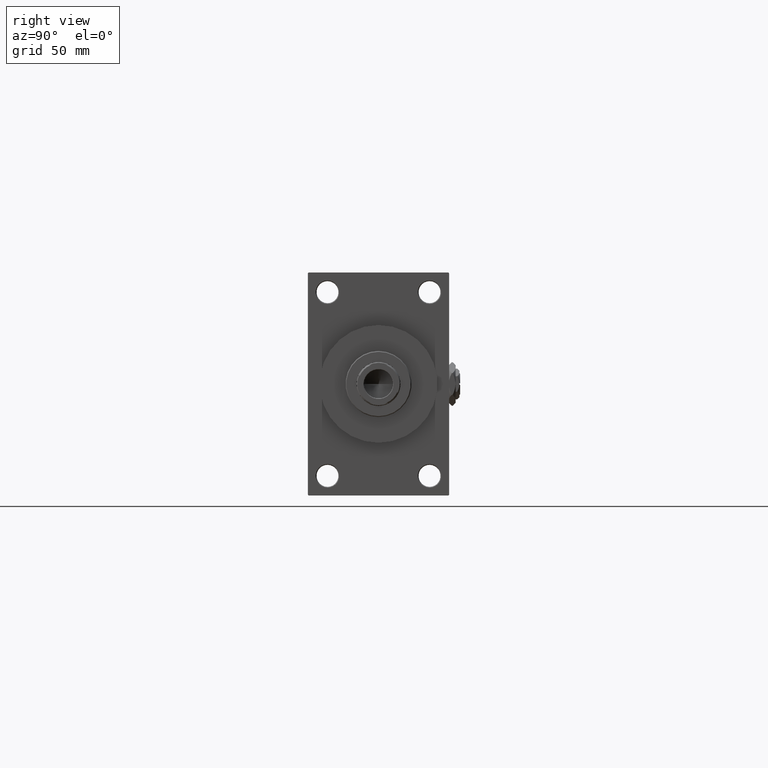
[diagram: clean part render]
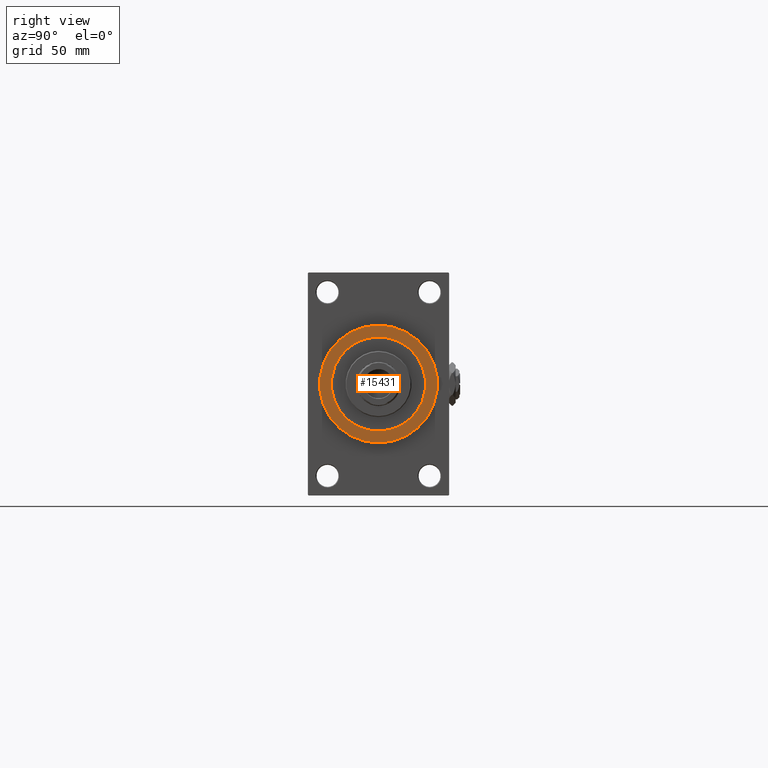
[diagram: same view with one face highlighted and labeled with its STEP entity id]
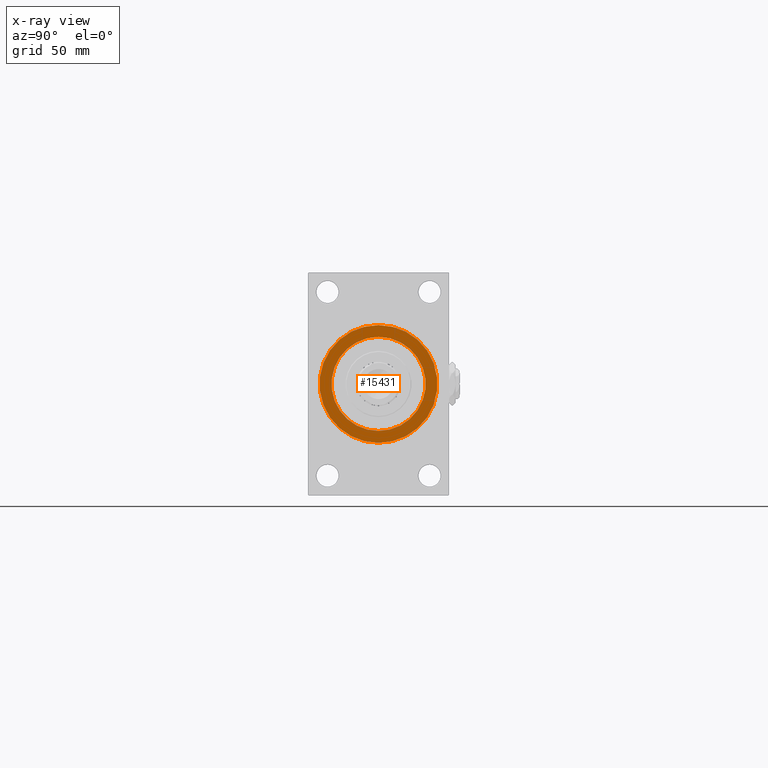
[diagram: x-ray of the same camera — body ghosted, the highlighted face saturated]
A machine part, right view. The second image highlights one B-rep face of the part: STEP entity #15431.
The next image is the same camera in x-ray: the body ghosted, the highlighted face saturated — about 0% of this face is hidden behind the body in this view.
In plain terms, the highlighted planar face has unit normal (1, 0, 0).
Its self-contained STEP definition (entity closure, byte-faithful):
#973 = PLANE ( 'NONE',  #46825 ) ;
#2323 = CARTESIAN_POINT ( 'NONE',  ( 385.9999999999999432, 0.000000000000000000, 0.000000000000000000 ) ) ;
#3842 = VERTEX_POINT ( 'NONE', #43515 ) ;
#4801 = DIRECTION ( 'NONE',  ( 0.000000000000000000, 0.000000000000000000, -1.000000000000000000 ) ) ;
#5044 = DIRECTION ( 'NONE',  ( 1.000000000000000000, 0.000000000000000000, 0.000000000000000000 ) ) ;
#5191 = DIRECTION ( 'NONE',  ( 0.000000000000000000, 0.000000000000000000, -1.000000000000000000 ) ) ;
#5443 = CIRCLE ( 'NONE', #27748, 37.50000000000000711 ) ;
#5760 = CIRCLE ( 'NONE', #17013, 30.00000000000000000 ) ;
#6057 = DIRECTION ( 'NONE',  ( 1.000000000000000000, 0.000000000000000000, 0.000000000000000000 ) ) ;
#7396 = CARTESIAN_POINT ( 'NONE',  ( 385.9999999999999432, 3.673940397442059178E-15, 30.00000000000000000 ) ) ;
#12169 = CARTESIAN_POINT ( 'NONE',  ( 385.9999999999999432, 0.000000000000000000, 0.000000000000000000 ) ) ;
#12331 = VERTEX_POINT ( 'NONE', #7396 ) ;
#12925 = DIRECTION ( 'NONE',  ( 1.000000000000000000, 0.000000000000000000, 0.000000000000000000 ) ) ;
#13915 = ORIENTED_EDGE ( 'NONE', *, *, #18518, .T. ) ;
#13969 = ORIENTED_EDGE ( 'NONE', *, *, #19358, .T. ) ;
#15431 = ADVANCED_FACE ( 'NONE', ( #46829, #20901 ), #973, .T. ) ;
#16271 = EDGE_LOOP ( 'NONE', ( #33964, #31075 ) ) ;
#17013 = AXIS2_PLACEMENT_3D ( 'NONE', #2323, #6057, #40452 ) ;
#18179 = AXIS2_PLACEMENT_3D ( 'NONE', #46412, #5044, #4801 ) ;
#18518 = EDGE_CURVE ( 'NONE', #3842, #48243, #5443, .T. ) ;
#18688 = AXIS2_PLACEMENT_3D ( 'NONE', #12169, #20402, #5191 ) ;
#19358 = EDGE_CURVE ( 'NONE', #48243, #3842, #39665, .T. ) ;
#20402 = DIRECTION ( 'NONE',  ( 1.000000000000000000, 0.000000000000000000, 0.000000000000000000 ) ) ;
#20901 = FACE_OUTER_BOUND ( 'NONE', #31494, .T. ) ;
#24312 = DIRECTION ( 'NONE',  ( 1.000000000000000000, 0.000000000000000000, 0.000000000000000000 ) ) ;
#26331 = EDGE_CURVE ( 'NONE', #43039, #12331, #5760, .T. ) ;
#27628 = DIRECTION ( 'NONE',  ( 0.000000000000000000, 0.000000000000000000, -1.000000000000000000 ) ) ;
#27748 = AXIS2_PLACEMENT_3D ( 'NONE', #27816, #24312, #36022 ) ;
#27816 = CARTESIAN_POINT ( 'NONE',  ( 385.9999999999999432, 0.000000000000000000, 0.000000000000000000 ) ) ;
#29455 = EDGE_CURVE ( 'NONE', #12331, #43039, #31401, .T. ) ;
#31075 = ORIENTED_EDGE ( 'NONE', *, *, #29455, .F. ) ;
#31401 = CIRCLE ( 'NONE', #18688, 30.00000000000000000 ) ;
#31494 = EDGE_LOOP ( 'NONE', ( #13915, #13969 ) ) ;
#33964 = ORIENTED_EDGE ( 'NONE', *, *, #26331, .F. ) ;
#36022 = DIRECTION ( 'NONE',  ( 0.000000000000000000, 0.000000000000000000, -1.000000000000000000 ) ) ;
#39665 = CIRCLE ( 'NONE', #18179, 37.50000000000000711 ) ;
#40452 = DIRECTION ( 'NONE',  ( 0.000000000000000000, 0.000000000000000000, -1.000000000000000000 ) ) ;
#43039 = VERTEX_POINT ( 'NONE', #44086 ) ;
#43304 = CARTESIAN_POINT ( 'NONE',  ( 385.9999999999999432, 4.592425496802575156E-15, -37.50000000000000711 ) ) ;
#43515 = CARTESIAN_POINT ( 'NONE',  ( 385.9999999999999432, 0.000000000000000000, 37.50000000000000711 ) ) ;
#44086 = CARTESIAN_POINT ( 'NONE',  ( 385.9999999999999432, 0.000000000000000000, -30.00000000000000000 ) ) ;
#46412 = CARTESIAN_POINT ( 'NONE',  ( 385.9999999999999432, 0.000000000000000000, 0.000000000000000000 ) ) ;
#46580 = CARTESIAN_POINT ( 'NONE',  ( 385.9999999999999432, 0.000000000000000000, 0.000000000000000000 ) ) ;
#46825 = AXIS2_PLACEMENT_3D ( 'NONE', #46580, #12925, #27628 ) ;
#46829 = FACE_BOUND ( 'NONE', #16271, .T. ) ;
#48243 = VERTEX_POINT ( 'NONE', #43304 ) ;